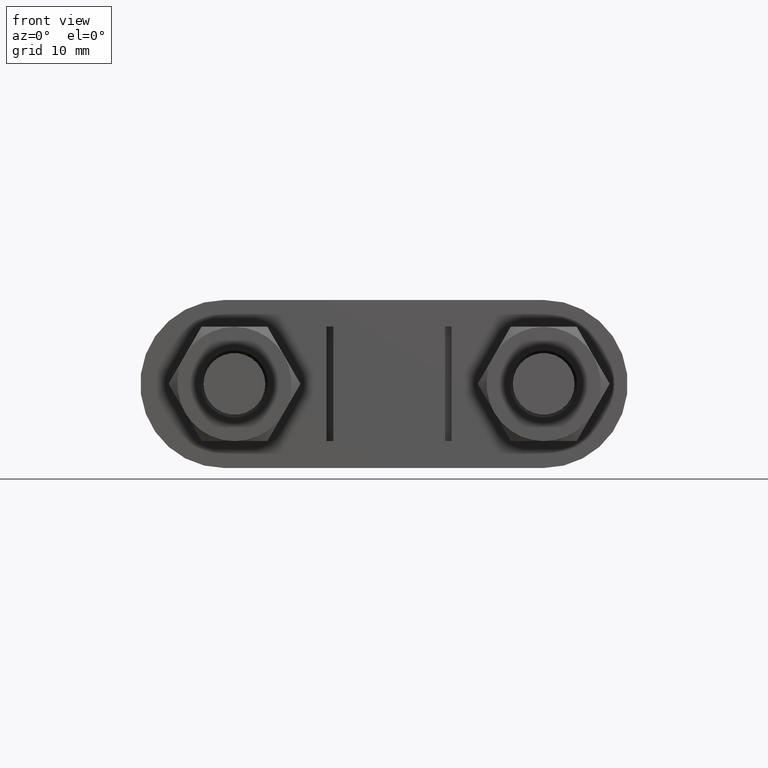
[diagram: clean part render]
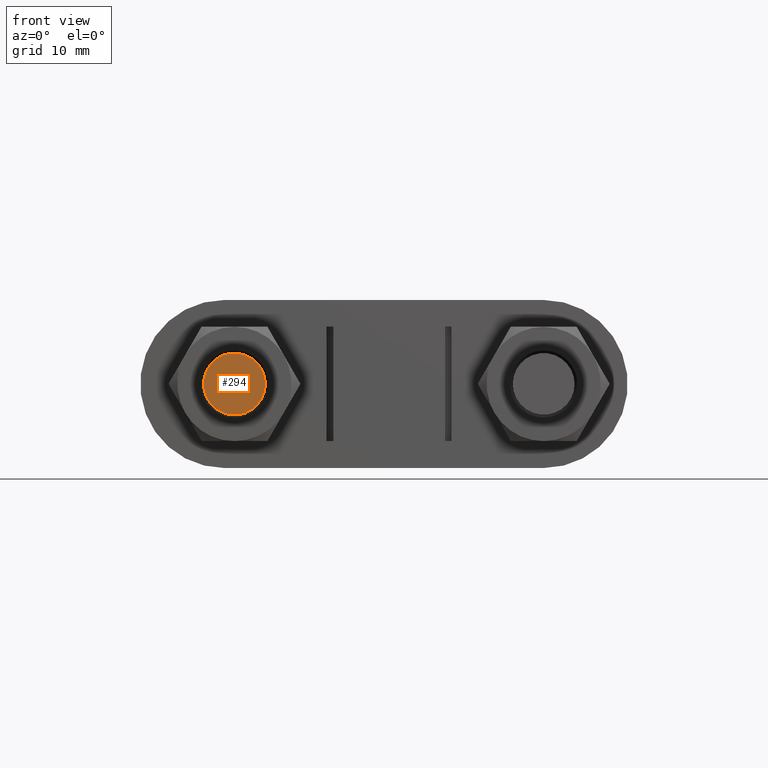
[diagram: same view with one face highlighted and labeled with its STEP entity id]
A machine part, front view. The second image highlights one B-rep face of the part: STEP entity #294.
In plain terms, the highlighted planar face has unit normal (-0, -1, -0).
Its self-contained STEP definition (entity closure, byte-faithful):
#294 = ADVANCED_FACE( '', ( #443 ), #444, .T. );
#443 = FACE_OUTER_BOUND( '', #1521, .T. );
#444 = PLANE( '', #1522 );
#1521 = EDGE_LOOP( '', ( #1888 ) );
#1522 = AXIS2_PLACEMENT_3D( '', #1889, #1890, #1891 );
#1888 = ORIENTED_EDGE( '', *, *, #2562, .T. );
#1889 = CARTESIAN_POINT( '', ( -23.0000000000000, 5.63318922758294E-015, 1.07153055959459E-016 ) );
#1890 = DIRECTION( '', ( -2.44921270764475E-016, -1.00000000000000, -3.06151588455594E-016 ) );
#1891 = DIRECTION( '', ( 0.000000000000000, 3.06151588455594E-016, -1.00000000000000 ) );
#2562 = EDGE_CURVE( '', #2823, #2823, #2824, .T. );
#2823 = VERTEX_POINT( '', #3401 );
#2824 = CIRCLE( '', #3402, 4.60000000000000 );
#3401 = CARTESIAN_POINT( '', ( -18.4000000000000, 4.50655138206635E-015, 1.07153055959459E-016 ) );
#3402 = AXIS2_PLACEMENT_3D( '', #4000, #4001, #4002 );
#4000 = CARTESIAN_POINT( '', ( -23.0000000000000, 5.63318922758293E-015, 1.07153055959459E-016 ) );
#4001 = DIRECTION( '', ( -2.44921270764475E-016, -1.00000000000000, -3.06151588455594E-016 ) );
#4002 = DIRECTION( '', ( 1.00000000000000, -2.44921270764475E-016, -3.48747654037229E-032 ) );